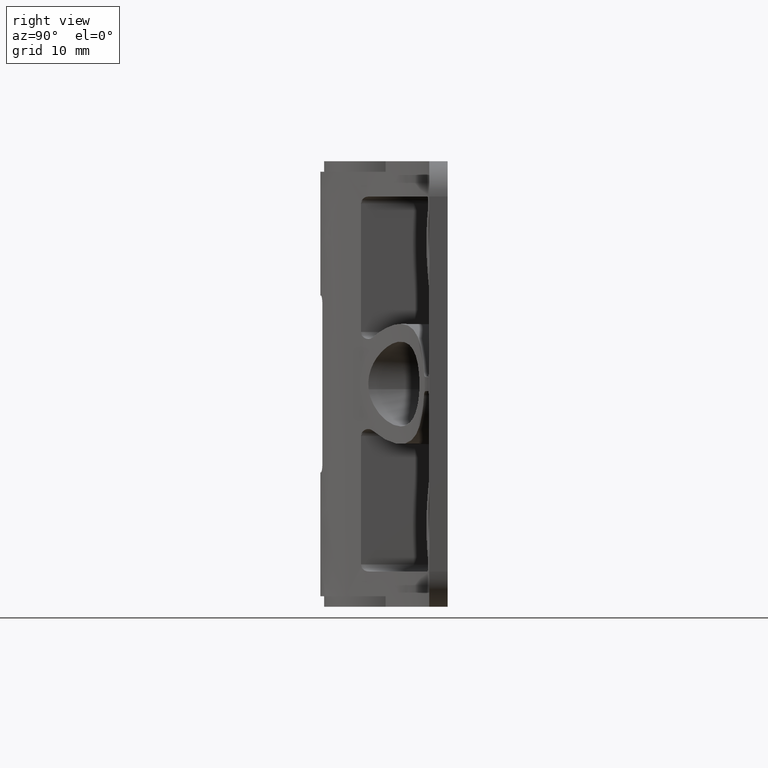
[diagram: clean part render]
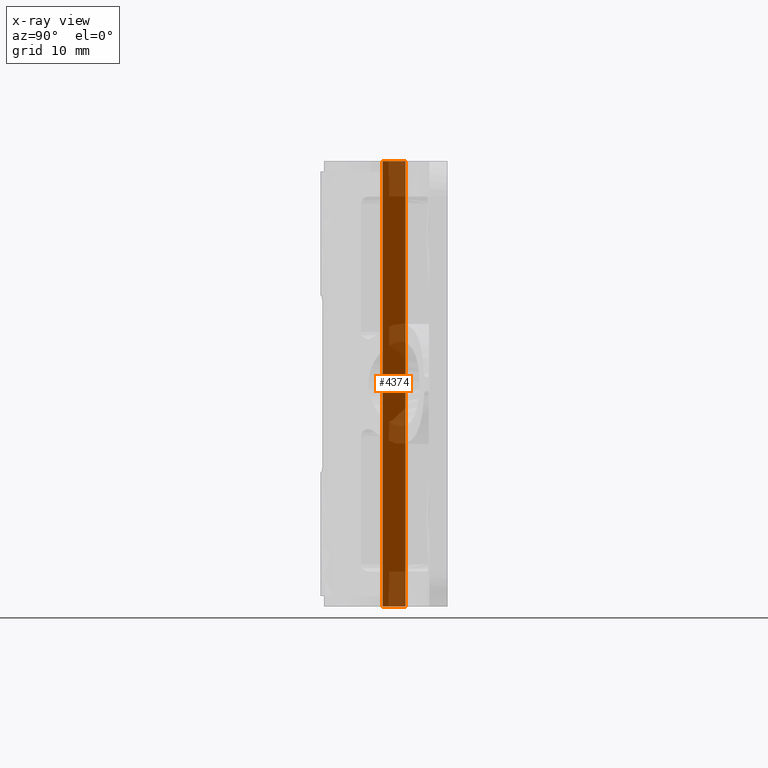
[diagram: x-ray — body ghosted, one internal face saturated and labeled with its STEP entity id]
A machine part, right view, then the same camera in x-ray: the body is ghosted and one INTERNAL B-rep face — a face not visible from any outside direction — is saturated and labeled: STEP entity #4374.
In plain terms, the highlighted face is a freeform B-spline surface patch.
Its self-contained STEP definition (entity closure, byte-faithful):
#4240=CARTESIAN_POINT('',(3.043406064729820,-0.200448310458700,63.0));
#4241=VERTEX_POINT('',#4240);
#4255=CARTESIAN_POINT('',(-0.094115999999900,3.048557000000000,63.0));
#4256=VERTEX_POINT('',#4255);
#4257=CARTESIAN_POINT('',(3.043406064729820,-0.200448310458700,63.0));
#4258=CARTESIAN_POINT('',(-0.094115999999900,3.048557000000000,63.0));
#4259=QUASI_UNIFORM_CURVE('',1,(#4257,#4258),.UNSPECIFIED.,.F.,.U.);
#4260=EDGE_CURVE('',#4241,#4256,#4259,.T.);
#4292=CARTESIAN_POINT('',(-0.094115999999900,3.048557000000000,0.0));
#4293=VERTEX_POINT('',#4292);
#4307=CARTESIAN_POINT('',(3.043406064729820,-0.200448310458700,0.0));
#4308=VERTEX_POINT('',#4307);
#4309=CARTESIAN_POINT('',(3.043406064729820,-0.200448310458700,0.0));
#4310=CARTESIAN_POINT('',(-0.094115999999900,3.048557000000000,0.0));
#4311=QUASI_UNIFORM_CURVE('',1,(#4309,#4310),.UNSPECIFIED.,.F.,.U.);
#4312=EDGE_CURVE('',#4308,#4293,#4311,.T.);
#4345=CARTESIAN_POINT('',(-0.094115999999900,3.048557000000000,0.0));
#4346=CARTESIAN_POINT('',(-0.094115999999900,3.048557000000000,63.0));
#4347=B_SPLINE_CURVE_WITH_KNOTS('',1,(#4345,#4346),.UNSPECIFIED.,.F.,.U.,(2,2),(-2.220446E-016,0.062999999999999),.UNSPECIFIED.);
#4348=EDGE_CURVE('',#4293,#4256,#4347,.T.);
#4359=CARTESIAN_POINT('',(3.200128625182258,-0.362732835655604,-3.146849877893774));
#4360=CARTESIAN_POINT('',(-0.250835464074602,3.210844739884502,-3.146849877893774));
#4361=CARTESIAN_POINT('',(3.200128625182258,-0.362732835655604,66.146851567685474));
#4362=CARTESIAN_POINT('',(-0.250835464074602,3.210844739884502,66.146851567685474));
#4363=B_SPLINE_SURFACE_WITH_KNOTS('',1,1,((#4359,#4361),(#4360,#4362)),.UNSPECIFIED.,.F.,.F.,.U.,(2,2),(2,2),(0.0,4.967857670439395),(0.0,69.293701445579245),.UNSPECIFIED.);
#4364=ORIENTED_EDGE('',*,*,#4260,.F.);
#4365=CARTESIAN_POINT('',(3.043406064729820,-0.200448310458700,0.0));
#4366=CARTESIAN_POINT('',(3.043406064729820,-0.200448310458700,63.0));
#4367=QUASI_UNIFORM_CURVE('',1,(#4365,#4366),.UNSPECIFIED.,.F.,.U.);
#4368=EDGE_CURVE('',#4308,#4241,#4367,.T.);
#4369=ORIENTED_EDGE('',*,*,#4368,.F.);
#4370=ORIENTED_EDGE('',*,*,#4312,.T.);
#4371=ORIENTED_EDGE('',*,*,#4348,.T.);
#4372=EDGE_LOOP('',(#4364,#4369,#4370,#4371));
#4373=FACE_OUTER_BOUND('',#4372,.T.);
#4374=ADVANCED_FACE('',(#4373),#4363,.T.);